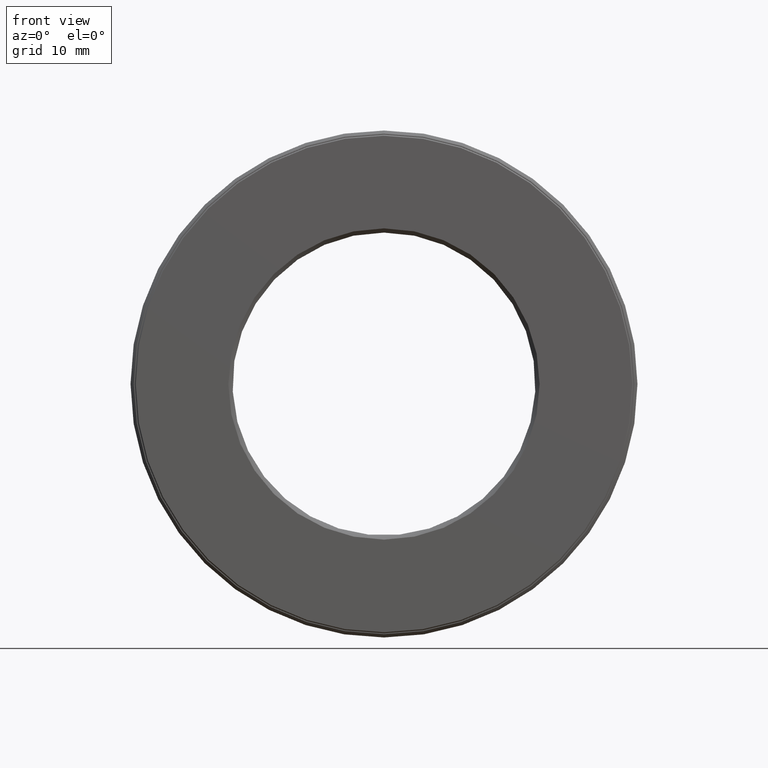
[diagram: clean part render]
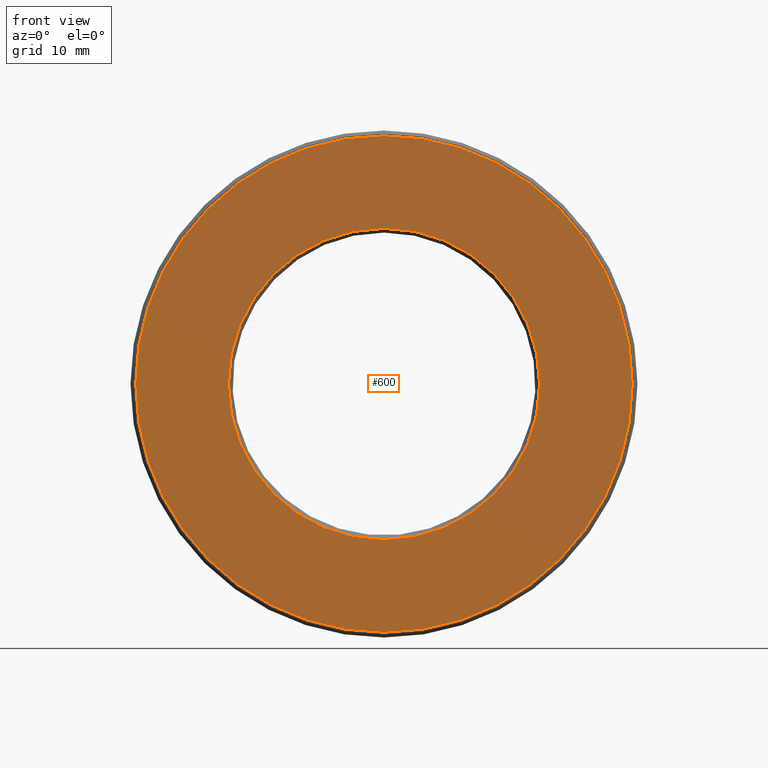
[diagram: same view with one face highlighted and labeled with its STEP entity id]
A machine part, front view. The second image highlights one B-rep face of the part: STEP entity #600.
In plain terms, the highlighted planar face has unit normal (-0, 1, 0).
Its self-contained STEP definition (entity closure, byte-faithful):
#67 = EDGE_CURVE ( 'NONE', #326, #326, #446, .T. ) ;
#94 = ORIENTED_EDGE ( 'NONE', *, *, #444, .F. ) ;
#111 = CARTESIAN_POINT ( 'NONE',  ( 0.0000000000000000000, -6.509481547403127300E-017, 1.178125000000000100 ) ) ;
#141 = AXIS2_PLACEMENT_3D ( 'NONE', #331, #324, #604 ) ;
#149 = PLANE ( 'NONE',  #249 ) ;
#155 = DIRECTION ( 'NONE',  ( -0.0000000000000000000, 1.000000000000000000, 0.0000000000000000000 ) ) ;
#249 = AXIS2_PLACEMENT_3D ( 'NONE', #396, #155, #339 ) ;
#272 = VERTEX_POINT ( 'NONE', #111 ) ;
#300 = CIRCLE ( 'NONE', #141, 1.178125000000000100 ) ;
#324 = DIRECTION ( 'NONE',  ( -0.0000000000000000000, 1.000000000000000000, -0.0000000000000000000 ) ) ;
#326 = VERTEX_POINT ( 'NONE', #392 ) ;
#331 = CARTESIAN_POINT ( 'NONE',  ( 0.0000000000000000000, -6.509481547403127300E-017, 0.0000000000000000000 ) ) ;
#339 = DIRECTION ( 'NONE',  ( 0.0000000000000000000, 0.0000000000000000000, 1.000000000000000000 ) ) ;
#355 = EDGE_LOOP ( 'NONE', ( #515 ) ) ;
#361 = FACE_BOUND ( 'NONE', #355, .T. ) ;
#392 = CARTESIAN_POINT ( 'NONE',  ( 0.0000000000000000000, 0.0000000000000000000, 0.7387500000000000200 ) ) ;
#396 = CARTESIAN_POINT ( 'NONE',  ( -1.621509918885022300E-032, -3.254740773701563600E-017, 0.0000000000000000000 ) ) ;
#444 = EDGE_CURVE ( 'NONE', #272, #272, #300, .T. ) ;
#446 = CIRCLE ( 'NONE', #497, 0.7387500000000000200 ) ;
#473 = EDGE_LOOP ( 'NONE', ( #94 ) ) ;
#474 = DIRECTION ( 'NONE',  ( 0.0000000000000000000, 0.0000000000000000000, 1.000000000000000000 ) ) ;
#497 = AXIS2_PLACEMENT_3D ( 'NONE', #513, #565, #474 ) ;
#513 = CARTESIAN_POINT ( 'NONE',  ( 0.0000000000000000000, 0.0000000000000000000, 0.0000000000000000000 ) ) ;
#515 = ORIENTED_EDGE ( 'NONE', *, *, #67, .T. ) ;
#565 = DIRECTION ( 'NONE',  ( -0.0000000000000000000, 1.000000000000000000, -0.0000000000000000000 ) ) ;
#598 = FACE_OUTER_BOUND ( 'NONE', #473, .T. ) ;
#600 = ADVANCED_FACE ( 'NONE', ( #598, #361 ), #149, .F. ) ;
#604 = DIRECTION ( 'NONE',  ( 0.0000000000000000000, 0.0000000000000000000, 1.000000000000000000 ) ) ;